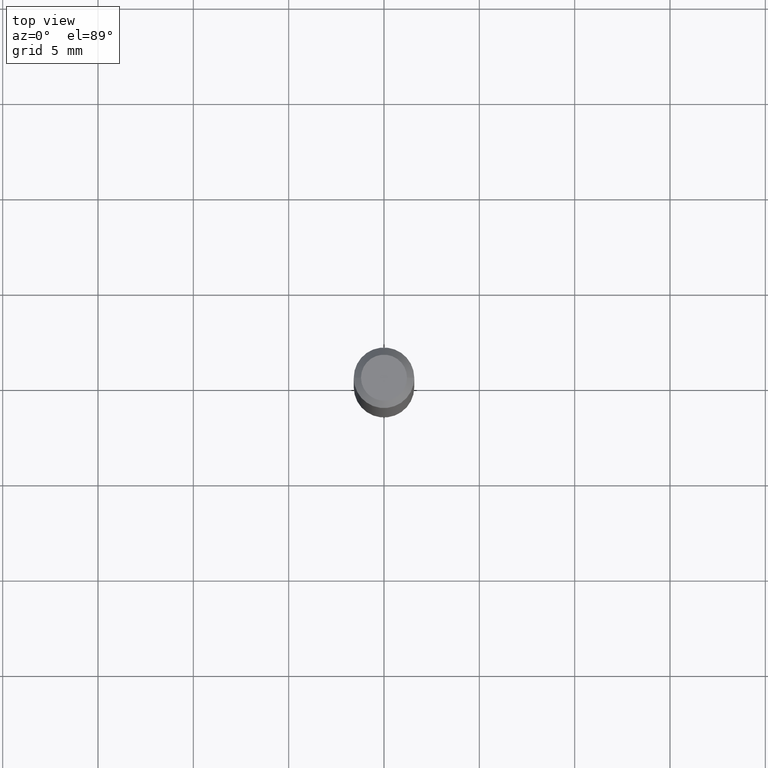
[diagram: clean part render]
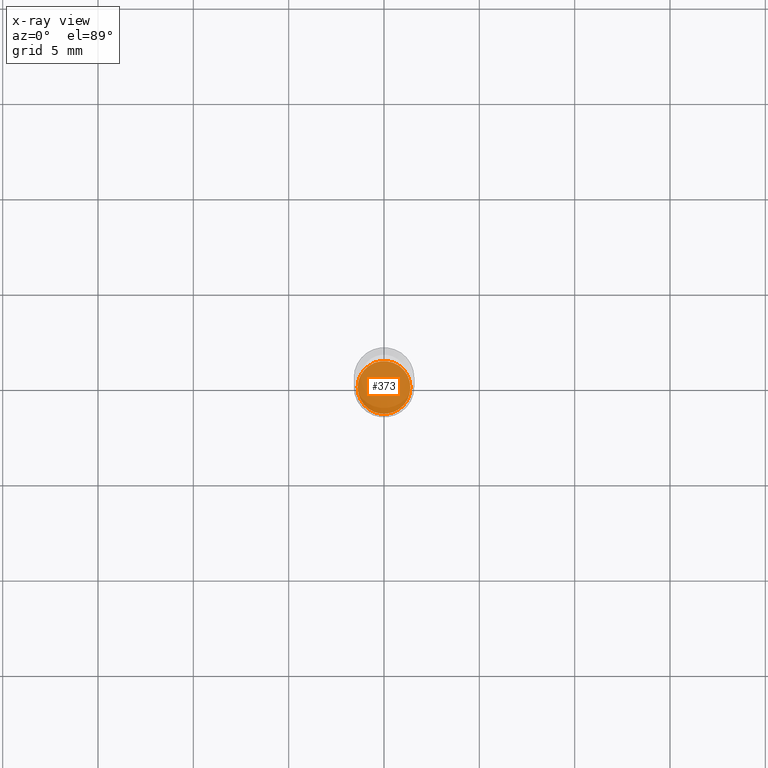
[diagram: x-ray — body ghosted, one internal face saturated and labeled with its STEP entity id]
A machine part, top view, then the same camera in x-ray: the body is ghosted and one INTERNAL B-rep face — a face not visible from any outside direction — is saturated and labeled: STEP entity #373.
In plain terms, the highlighted planar face has unit normal (-0, 0, 1).
Its self-contained STEP definition (entity closure, byte-faithful):
#15 = VERTEX_POINT ( 'NONE', #314 ) ;
#35 = DIRECTION ( 'NONE',  ( 1.000000000000000000, -6.982962677686265922E-15, 4.876176775795935793E-29 ) ) ;
#37 = DIRECTION ( 'NONE',  ( -2.445468806185136597E-29, 3.491481338843145583E-15, 1.000000000000000000 ) ) ;
#40 = AXIS2_PLACEMENT_3D ( 'NONE', #395, #344, #35 ) ;
#92 = VERTEX_POINT ( 'NONE', #310 ) ;
#158 = DIRECTION ( 'NONE',  ( 1.000000000000000000, -6.982962677686273810E-15, 0.000000000000000000 ) ) ;
#190 = CARTESIAN_POINT ( 'NONE',  ( 2.861198503236610065E-29, -4.085033166446480067E-15, -1.170000000000000151 ) ) ;
#204 = EDGE_LOOP ( 'NONE', ( #374, #402 ) ) ;
#224 = FACE_OUTER_BOUND ( 'NONE', #204, .T. ) ;
#250 = CIRCLE ( 'NONE', #301, 0.05449999999999997208 ) ;
#264 = CARTESIAN_POINT ( 'NONE',  ( 2.861198503236610065E-29, -4.085033166446480067E-15, -1.170000000000000151 ) ) ;
#293 = CIRCLE ( 'NONE', #364, 0.05449999999999997208 ) ;
#301 = AXIS2_PLACEMENT_3D ( 'NONE', #190, #513, #158 ) ;
#310 = CARTESIAN_POINT ( 'NONE',  ( -0.05449999999999997208, -3.695138148283114316E-15, -1.170000000000000151 ) ) ;
#314 = CARTESIAN_POINT ( 'NONE',  ( 0.05449999999999997208, -4.465604632380382045E-15, -1.170000000000000151 ) ) ;
#339 = EDGE_CURVE ( 'NONE', #15, #92, #293, .T. ) ;
#344 = DIRECTION ( 'NONE',  ( -2.438088387897960049E-29, 3.491481338843145188E-15, 1.000000000000000000 ) ) ;
#364 = AXIS2_PLACEMENT_3D ( 'NONE', #264, #37, #510 ) ;
#373 = ADVANCED_FACE ( 'NONE', ( #224 ), #386, .F. ) ;
#374 = ORIENTED_EDGE ( 'NONE', *, *, #339, .F. ) ;
#377 = EDGE_CURVE ( 'NONE', #92, #15, #250, .T. ) ;
#386 = PLANE ( 'NONE',  #40 ) ;
#395 = CARTESIAN_POINT ( 'NONE',  ( 2.861198503236610065E-29, -4.085033166446480067E-15, -1.170000000000000151 ) ) ;
#402 = ORIENTED_EDGE ( 'NONE', *, *, #377, .F. ) ;
#510 = DIRECTION ( 'NONE',  ( 1.000000000000000000, -6.982962677686273810E-15, 0.000000000000000000 ) ) ;
#513 = DIRECTION ( 'NONE',  ( -2.445468806185136597E-29, 3.491481338843145583E-15, 1.000000000000000000 ) ) ;